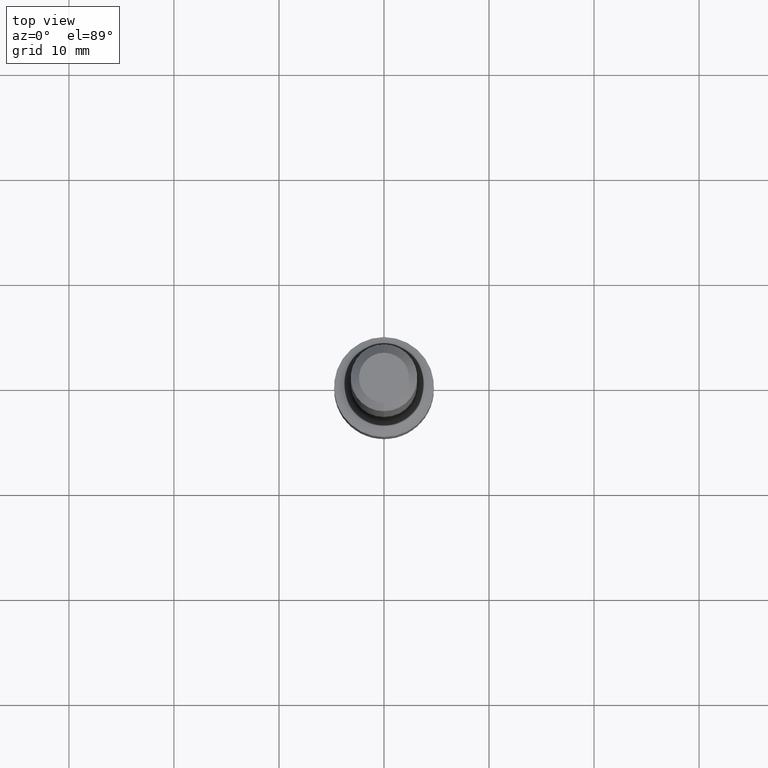
[diagram: clean part render]
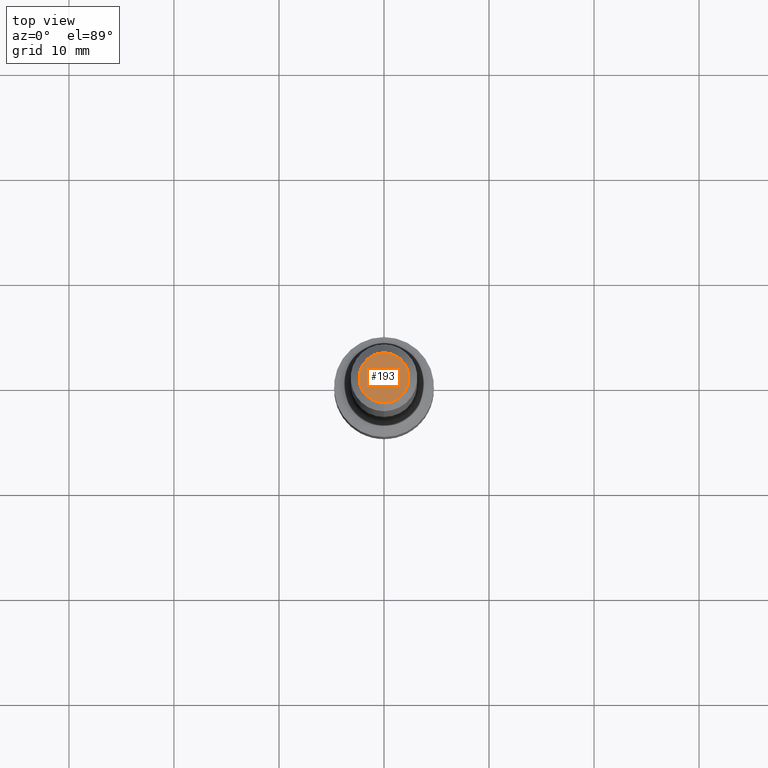
[diagram: same view with one face highlighted and labeled with its STEP entity id]
A machine part, top view. The second image highlights one B-rep face of the part: STEP entity #193.
In plain terms, the highlighted planar face has unit normal (0, -0, -1).
Its self-contained STEP definition (entity closure, byte-faithful):
#12 = DIRECTION ( 'NONE',  ( -2.429224719885951237E-29, 3.514743794979554009E-15, 1.000000000000000000 ) ) ;
#45 = FACE_OUTER_BOUND ( 'NONE', #175, .T. ) ;
#48 = CIRCLE ( 'NONE', #442, 0.09379999999999999449 ) ;
#68 = AXIS2_PLACEMENT_3D ( 'NONE', #251, #12, #202 ) ;
#73 = ORIENTED_EDGE ( 'NONE', *, *, #274, .T. ) ;
#133 = DIRECTION ( 'NONE',  ( 6.982962677686265922E-15, 1.000000000000000000, -3.514743794979554009E-15 ) ) ;
#134 = DIRECTION ( 'NONE',  ( -2.429224719885951237E-29, 3.514743794979554009E-15, 1.000000000000000000 ) ) ;
#154 = CARTESIAN_POINT ( 'NONE',  ( -7.505384809562050668E-16, -0.09379999999999999449, 3.165569013653353853E-16 ) ) ;
#160 = PLANE ( 'NONE',  #212 ) ;
#175 = EDGE_LOOP ( 'NONE', ( #283, #73 ) ) ;
#193 = ADVANCED_FACE ( 'NONE', ( #45 ), #160, .F. ) ;
#202 = DIRECTION ( 'NONE',  ( -6.982962677686266711E-15, -1.000000000000000000, 3.514743794979554798E-15 ) ) ;
#212 = AXIS2_PLACEMENT_3D ( 'NONE', #312, #469, #133 ) ;
#251 = CARTESIAN_POINT ( 'NONE',  ( 3.188616546869113811E-46, -4.613476114800739077E-32, -1.312606660374679235E-17 ) ) ;
#274 = EDGE_CURVE ( 'NONE', #431, #319, #48, .T. ) ;
#283 = ORIENTED_EDGE ( 'NONE', *, *, #451, .T. ) ;
#308 = CIRCLE ( 'NONE', #68, 0.09379999999999999449 ) ;
#312 = CARTESIAN_POINT ( 'NONE',  ( 6.550018991669718048E-16, 0.09379999999999999449, -3.362460012709555684E-16 ) ) ;
#319 = VERTEX_POINT ( 'NONE', #479 ) ;
#320 = CARTESIAN_POINT ( 'NONE',  ( 3.188616546869113811E-46, -4.613476114800739077E-32, -1.312606660374679235E-17 ) ) ;
#403 = DIRECTION ( 'NONE',  ( -6.982962677686266711E-15, -1.000000000000000000, 3.514743794979554798E-15 ) ) ;
#431 = VERTEX_POINT ( 'NONE', #154 ) ;
#442 = AXIS2_PLACEMENT_3D ( 'NONE', #320, #134, #403 ) ;
#451 = EDGE_CURVE ( 'NONE', #319, #431, #308, .T. ) ;
#469 = DIRECTION ( 'NONE',  ( 2.429224719885950956E-29, -3.514743794979554009E-15, -1.000000000000000000 ) ) ;
#479 = CARTESIAN_POINT ( 'NONE',  ( 7.639361169388778676E-16, 0.09379999999999999449, -3.428090345728289792E-16 ) ) ;